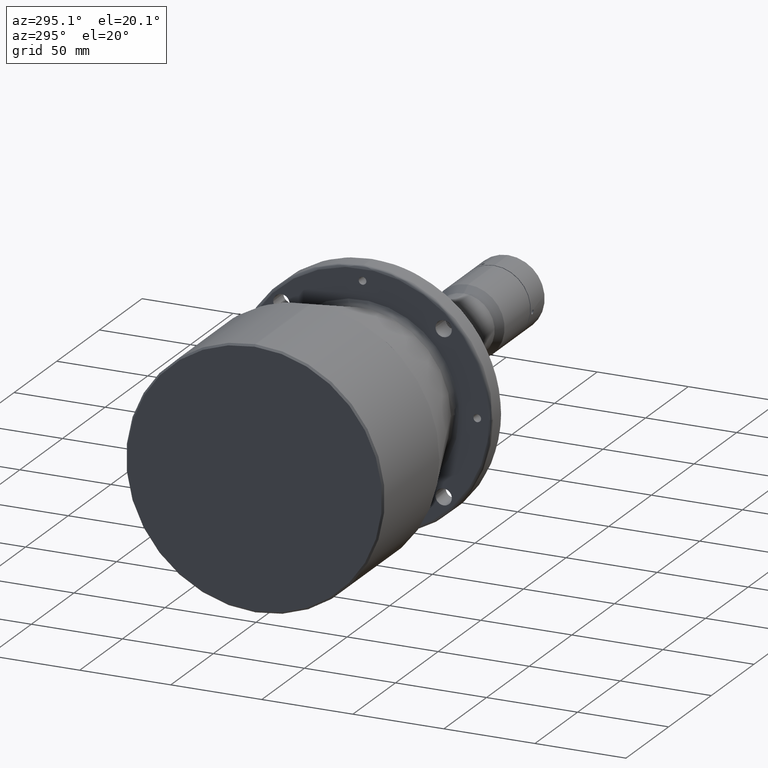
[diagram: clean part render]
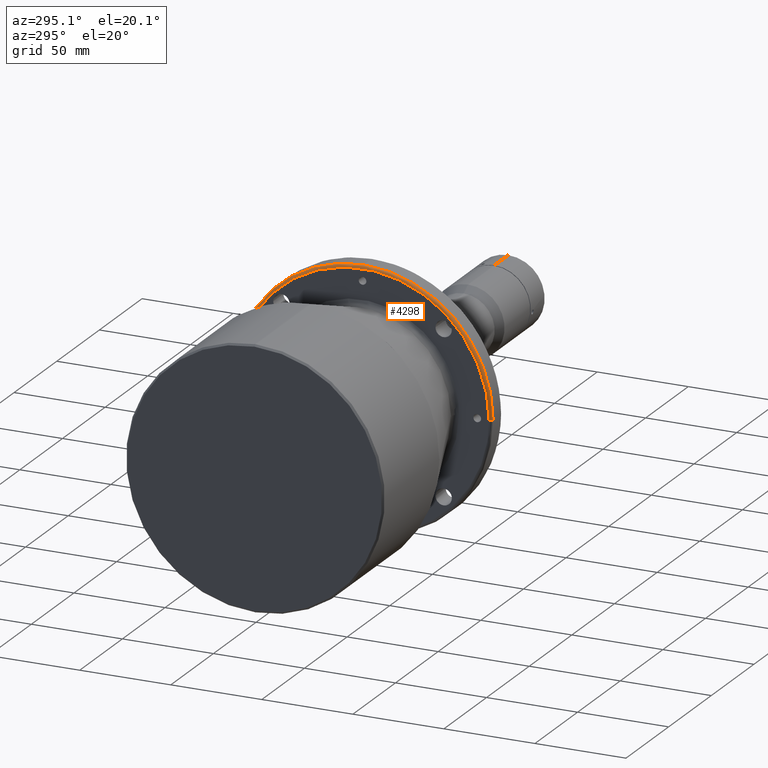
[diagram: same view with one face highlighted and labeled with its STEP entity id]
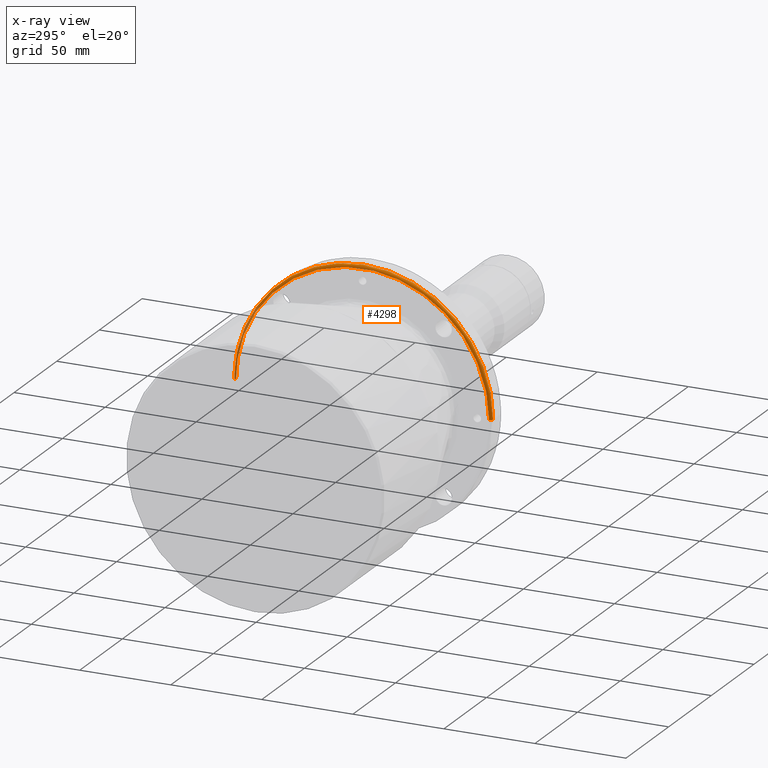
[diagram: x-ray of the same camera — body ghosted, the highlighted face saturated]
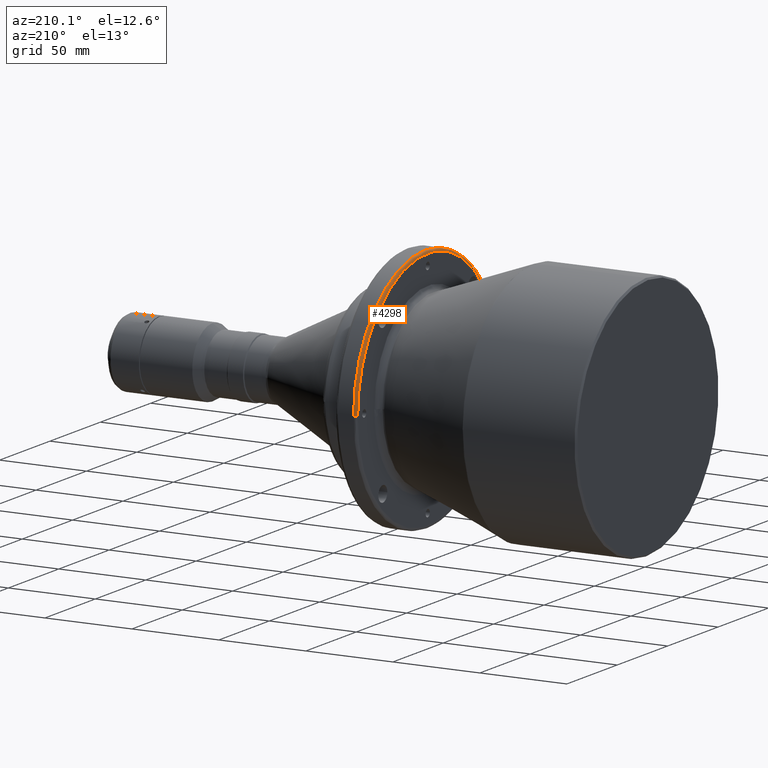
[diagram: same view with one face highlighted and labeled with its STEP entity id]
A machine part, auxiliary view. The second image highlights one B-rep face of the part: STEP entity #4298.
The next image is the same camera in x-ray: the body ghosted, the highlighted face saturated — about 11% of this face is hidden behind the body in this view.
A second angle (auxiliary view) of the same face is appended — the face is thin or edge-on in the first view.
In plain terms, the highlighted face is a freeform B-spline surface patch.
Its self-contained STEP definition (entity closure, byte-faithful):
#7 = CARTESIAN_POINT ( 'NONE',  ( -25.15000000000001300, 16.93357724021069500, 67.40557788604992600 ) ) ;
#20 = CARTESIAN_POINT ( 'NONE',  ( -24.52867965661536700, 70.99999999954467000, 0.0000000000000000000 ) ) ;
#22 = CARTESIAN_POINT ( 'NONE',  ( -25.14999999999999900, 64.56943411866772900, 25.71285148641904400 ) ) ;
#34 = CARTESIAN_POINT ( 'NONE',  ( -25.15000000000000900, 69.50000000069108800, 3.089059547309451800 ) ) ;
#48 = CARTESIAN_POINT ( 'NONE',  ( -25.15000000000000600, 66.70326019980041100, 19.51732346156605400 ) ) ;
#61 = CARTESIAN_POINT ( 'NONE',  ( -25.14999999999999900, 66.60193024557297300, 19.86095965016119200 ) ) ;
#77 = CARTESIAN_POINT ( 'NONE',  ( -25.15000000000000200, 68.43843914036533200, 12.15256604439828400 ) ) ;
#140 = CARTESIAN_POINT ( 'NONE',  ( -25.14999999999999900, -67.14607759262814600, 17.94462166437045900 ) ) ;
#149 = CARTESIAN_POINT ( 'NONE',  ( -25.24483063400000300, -70.37008064799999800, 0.0000000000000000000 ) ) ;
#157 = CARTESIAN_POINT ( 'NONE',  ( -25.15000000000000200, -62.85584053337474600, 29.65646428674047600 ) ) ;
#173 = CARTESIAN_POINT ( 'NONE',  ( -25.15000000000000200, -68.10320550342322600, 13.86444423086701100 ) ) ;
#188 = CARTESIAN_POINT ( 'NONE',  ( -25.15000000000000600, -66.82930120893652800, 19.08183642711247800 ) ) ;
#199 = CARTESIAN_POINT ( 'NONE',  ( -25.15000000000000600, -64.91261266039570900, 24.83150326318654400 ) ) ;
#209 = ORIENTED_EDGE ( 'NONE', *, *, #1931, .F. ) ;
#215 = CARTESIAN_POINT ( 'NONE',  ( -25.14999999999999900, 14.66338187723548900, 67.94223714341832500 ) ) ;
#227 = CARTESIAN_POINT ( 'NONE',  ( -25.15000000000000600, -25.49934572463178400, 64.65323566186219800 ) ) ;
#237 = CARTESIAN_POINT ( 'NONE',  ( -25.15000000003668700, -69.49999998662582400, 0.0000000000000000000 ) ) ;
#243 = CARTESIAN_POINT ( 'NONE',  ( -25.14999999999999900, -19.49606512383960300, 66.71609871024914200 ) ) ;
#259 = CARTESIAN_POINT ( 'NONE',  ( -25.15000000000000200, -32.74401390421467500, 61.30319222040626700 ) ) ;
#275 = CARTESIAN_POINT ( 'NONE',  ( -25.15000000000000200, 7.935071492417510100, 69.04577024414700800 ) ) ;
#288 = CARTESIAN_POINT ( 'NONE',  ( -25.15000000000000900, 32.62958265003229700, 61.36417633138341200 ) ) ;
#307 = CARTESIAN_POINT ( 'NONE',  ( -25.15000000000001300, 59.35795304109333900, 36.15085882399316100 ) ) ;
#316 = ORIENTED_EDGE ( 'NONE', *, *, #2283, .T. ) ;
#317 = EDGE_CURVE ( 'NONE', #1898, #4238, #394, .T. ) ;
#323 = CARTESIAN_POINT ( 'NONE',  ( -25.15000000000000600, 39.43483360961482000, 57.22888769233370000 ) ) ;
#337 = CARTESIAN_POINT ( 'NONE',  ( -25.15000000000000200, 50.98983104269081000, 47.22593120249592900 ) ) ;
#353 = CARTESIAN_POINT ( 'NONE',  ( -25.14999999999999900, 50.67197046114332400, 47.56725663739805300 ) ) ;
#369 = CARTESIAN_POINT ( 'NONE',  ( -25.15000000003668700, 69.49999998662582400, 0.0000000000000000000 ) ) ;
#394 = CIRCLE ( 'NONE', #2090, 71.00000000006113500 ) ;
#397 = CARTESIAN_POINT ( 'NONE',  ( -25.15000000000000600, 62.44254365335036300, 30.51523889023990300 ) ) ;
#412 = CARTESIAN_POINT ( 'NONE',  ( -25.15000000000000600, 67.86335111324619600, 14.99680590185954700 ) ) ;
#484 = CARTESIAN_POINT ( 'NONE',  ( -23.65000000069091300, 71.00000000004585800, -3.187673809220023100E-009 ) ) ;
#488 = CARTESIAN_POINT ( 'NONE',  ( -25.15000000000000200, -51.09300098923260000, 47.11429259081953100 ) ) ;
#504 = CARTESIAN_POINT ( 'NONE',  ( -25.14999999999999900, -62.66498641259350700, 30.05623799162883000 ) ) ;
#517 = CARTESIAN_POINT ( 'NONE',  ( -25.15000000000000200, -66.93674787702161700, 18.70321884678164900 ) ) ;
#531 = CARTESIAN_POINT ( 'NONE',  ( -25.15000000000000600, -62.52729301971967900, 30.34120197159999700 ) ) ;
#545 = CARTESIAN_POINT ( 'NONE',  ( -25.14999999999999900, -51.74311134290822900, 46.40103364986101300 ) ) ;
#559 = CARTESIAN_POINT ( 'NONE',  ( -25.15000000000000600, 3.615260546824086200, 69.43241122376839800 ) ) ;
#571 = CARTESIAN_POINT ( 'NONE',  ( -25.14999999999999900, -25.25976417168491400, 64.74721643963491100 ) ) ;
#583 = CARTESIAN_POINT ( 'NONE',  ( -25.15000000000000200, -18.30477206412453800, 67.04779601054401900 ) ) ;
#597 = CARTESIAN_POINT ( 'NONE',  ( -25.15000000000000600, -32.96485417348282000, 61.18480755394263300 ) ) ;
#613 = CARTESIAN_POINT ( 'NONE',  ( -25.15000000000000200, -25.33845331186490300, 64.71645972324434100 ) ) ;
#626 = CARTESIAN_POINT ( 'NONE',  ( -25.15000000000000200, 32.66885577072833500, 61.34327656883753800 ) ) ;
#642 = CARTESIAN_POINT ( 'NONE',  ( -25.15000000000001300, 26.46633858475883700, 64.27827650886369800 ) ) ;
#658 = CARTESIAN_POINT ( 'NONE',  ( -25.14999999999998800, 39.08877496991725300, 57.46622808633605900 ) ) ;
#674 = CARTESIAN_POINT ( 'NONE',  ( -25.15000000000000900, 55.51076990308021000, 41.81872439423718600 ) ) ;
#690 = CARTESIAN_POINT ( 'NONE',  ( -25.15000000000000200, 48.00641872720680000, 50.28267640048829200 ) ) ;
#733 = CARTESIAN_POINT ( 'NONE',  ( -25.14999999999999900, 68.01670562237657700, 14.28210398955498500 ) ) ;
#752 = CARTESIAN_POINT ( 'NONE',  ( -25.14999999999999100, 68.78330853501961400, 9.959155895381366400 ) ) ;
#770 = CARTESIAN_POINT ( 'NONE',  ( -25.14999999999999500, 67.69106689393268500, 15.76466445911137400 ) ) ;
#813 = CARTESIAN_POINT ( 'NONE',  ( -25.15000000003668700, -69.49999998662582400, 0.0000000000000000000 ) ) ;
#820 = CARTESIAN_POINT ( 'NONE',  ( -24.52008064800000400, -71.09483063400000400, 0.0000000000000000000 ) ) ;
#827 = CARTESIAN_POINT ( 'NONE',  ( -25.14999999999999500, -67.84410767111322100, 15.10751753327878300 ) ) ;
#843 = CARTESIAN_POINT ( 'NONE',  ( -25.15000000000000200, -68.58132653187320200, 11.31841233753285200 ) ) ;
#859 = CARTESIAN_POINT ( 'NONE',  ( -25.15000000000000600, -62.56872603514107600, 30.25576652540834000 ) ) ;
#872 = CARTESIAN_POINT ( 'NONE',  ( -25.14999999999999900, -62.00255059036769700, 31.41786264812665400 ) ) ;
#883 = CARTESIAN_POINT ( 'NONE',  ( -25.15000000000000200, -59.46410138107357600, 35.97598738330842800 ) ) ;
#888 =( BOUNDED_CURVE ( )  B_SPLINE_CURVE ( 3, ( #369, #2010, #20, #4003 ),
 .UNSPECIFIED., .F., .F. ) 
 B_SPLINE_CURVE_WITH_KNOTS ( ( 4, 4 ),
 ( 0.06314145699999938700, 0.9368585429999977100 ),
 .UNSPECIFIED. ) 
 CURVE ( )  GEOMETRIC_REPRESENTATION_ITEM ( )  RATIONAL_B_SPLINE_CURVE ( ( 0.9565783021659932700, 0.7697947703959748800, 0.7697947703959744400, 0.9565783021659917100 ) ) 
 REPRESENTATION_ITEM ( '' )  );
#897 = CARTESIAN_POINT ( 'NONE',  ( -25.15000000000000900, -33.22327051997781000, 61.04517979989158500 ) ) ;
#909 = CARTESIAN_POINT ( 'NONE',  ( -25.14999999999999500, -39.70603994982050000, 57.04105497921728600 ) ) ;
#924 = CARTESIAN_POINT ( 'NONE',  ( -25.15000000000000900, -9.899350284176316400, 68.79303408071703500 ) ) ;
#935 = CARTESIAN_POINT ( 'NONE',  ( -25.15000000000000900, -5.780748179701006100, 69.31969382113146600 ) ) ;
#950 = CARTESIAN_POINT ( 'NONE',  ( -25.14999999999999900, -47.31846151708131700, 50.91065762068905800 ) ) ;
#963 = CARTESIAN_POINT ( 'NONE',  ( -25.14999999999999500, 45.27015428242212600, 52.73432771553675700 ) ) ;
#981 = CARTESIAN_POINT ( 'NONE',  ( -25.15000000000000200, 24.59965545191163000, 65.00124770496671500 ) ) ;
#997 = CARTESIAN_POINT ( 'NONE',  ( -25.15000000000001600, 39.50392321831004200, 57.18121848518328700 ) ) ;
#1012 = CARTESIAN_POINT ( 'NONE',  ( -25.15000000000000600, 55.55541910674316600, 41.75939082263023000 ) ) ;
#1025 = CARTESIAN_POINT ( 'NONE',  ( -25.15000000000000600, 53.02313755981960200, 44.95855932869464100 ) ) ;
#1043 = CARTESIAN_POINT ( 'NONE',  ( -25.15000000000000200, 64.73144780720386400, 25.30054592623711700 ) ) ;
#1057 = CARTESIAN_POINT ( 'NONE',  ( -25.14999999999999900, 63.55084096181419500, 28.16626316024374100 ) ) ;
#1071 = CARTESIAN_POINT ( 'NONE',  ( -25.15000000000000200, 65.23328529718742200, 23.99545343977288800 ) ) ;
#1086 = CARTESIAN_POINT ( 'NONE',  ( -25.15000000000000600, 62.26530769982684200, 30.87576407974521300 ) ) ;
#1090 = CARTESIAN_POINT ( 'NONE',  ( -25.15000000000000200, -68.89134682242782000, 9.177823245543226700 ) ) ;
#1099 = CARTESIAN_POINT ( 'NONE',  ( -25.15000000000000900, 68.87791433487193200, 9.278094791112312800 ) ) ;
#1142 = CARTESIAN_POINT ( 'NONE',  ( -24.52008064800000400, 71.09483063400000400, 0.0000000000000000000 ) ) ;
#1161 = CARTESIAN_POINT ( 'NONE',  ( -25.15000000000000600, -61.26587452857276600, 32.84439853307799200 ) ) ;
#1177 = CARTESIAN_POINT ( 'NONE',  ( -25.14999999999999900, -66.02339109590438700, 21.74307443325844600 ) ) ;
#1184 = CARTESIAN_POINT ( 'NONE',  ( -25.24483063400000300, 70.37008064799999800, 0.0000000000000000000 ) ) ;
#1189 = CARTESIAN_POINT ( 'NONE',  ( -25.15000000000000200, -59.42941193954009500, 36.03326317693997500 ) ) ;
#1202 = CARTESIAN_POINT ( 'NONE',  ( -25.14999999999999900, -55.74803226872569400, 41.50199408482453800 ) ) ;
#1217 = CARTESIAN_POINT ( 'NONE',  ( -25.14999999999999900, -51.39414825087613500, 46.78600456088713600 ) ) ;
#1229 = CARTESIAN_POINT ( 'NONE',  ( -25.14999999999999500, -43.22434126017021300, 54.45046503941485100 ) ) ;
#1240 = CARTESIAN_POINT ( 'NONE',  ( -25.15000000000000600, -23.85886759692006400, 65.29170678811254900 ) ) ;
#1247 = VERTEX_POINT ( 'NONE', #4216 ) ;
#1256 = CARTESIAN_POINT ( 'NONE',  ( -25.15000000000000200, -17.45028343163392700, 67.27366118436611900 ) ) ;
#1269 = CARTESIAN_POINT ( 'NONE',  ( -25.15000000000000200, 1.447741991175169700, 69.50001041610192900 ) ) ;
#1272 = B_SPLINE_CURVE_WITH_KNOTS ( 'NONE', 3,
 ( #813, #3805, #2453, #3099, #2483, #3156, #2774, #1460, #3791, #1090, #3440, #3186, #2219, #843, #4187, #2192, #173, #1833, #3173, #2870, #1560, #827, #2542, #140, #517, #188, #4176, #3558, #2513, #2885, #2844, #1177, #3838, #2526, #2858, #3852, #3533, #199, #2175, #1532, #3882, #4217, #157, #504, #859, #531, #4206, #3521, #872, #1161, #3200, #1519, #1847, #3508, #883, #1189, #3869, #2158, #1858, #2205, #1550, #3214, #1202, #1503, #3226, #3542, #1870, #4161, #2555, #545, #1217, #3897, #2497, #488, #2829, #1917, #1895, #950, #1593, #3293, #1284, #2910, #3627, #4274, #2940, #1229, #4246, #3571, #1570, #3236, #909, #4292, #3251, #1904, #4261, #2255, #3907, #897, #597, #1623, #3918, #259, #2231, #2592, #2273, #2245, #1883, #227, #613, #571, #1240, #2581, #243, #583, #1582, #1256, #2287, #3586, #3599, #1608, #2924, #924, #3265, #3929, #2604, #935, #3279, #1269, #559, #3615, #3943, #275, #1929, #2617, #2955, #4232, #215, #2565, #2898, #3990, #7, #1687, #4019, #3356, #1979, #2636, #981, #2972, #1995, #2988, #642, #2300, #2333, #3704, #4338, #3020, #3674, #288, #626, #1672, #2651, #1298, #2363, #658, #1349, #323, #997, #2666, #4005, #4309, #3324, #4354, #963, #3309, #1655, #2012, #3007, #3342, #690, #1315, #3687, #353, #2346, #1330, #337, #2696, #3037, #1025, #2679, #3643, #3657, #1637, #674, #1012, #3373, #3974, #1363, #3957, #1947, #1964, #4322, #2316, #307, #2057, #1394, #3388, #2088, #2738, #1086, #1731, #3079, #397, #3747, #2026, #1057, #1743, #22, #1043, #3049, #4066, #4050, #3404, #1071, #4078, #3419, #2075, #61, #3733, #2378, #48, #1411, #2408, #1380, #770, #412, #2042, #1701, #2419, #733, #4095, #3718, #77, #2753, #752, #1716, #3112, #3093, #1099, #3451, #3435, #4037, #34, #1424 ),
 .UNSPECIFIED., .F., .F.,
 ( 4, 1, 1, 1, 1, 1, 1, 1, 2, 2, 1, 1, 1, 1, 1, 2, 2, 1, 1, 1, 1, 1, 2, 2, 1, 1, 1, 1, 1, 2, 2, 1, 1, 1, 1, 1, 2, 2, 1, 1, 1, 1, 1, 2, 2, 1, 1, 1, 1, 1, 2, 2, 1, 1, 1, 1, 1, 2, 2, 1, 1, 1, 1, 1, 2, 2, 1, 1, 1, 1, 1, 2, 2, 1, 1, 1, 1, 1, 2, 2, 1, 1, 1, 1, 2, 2, 1, 1, 1, 1, 2, 2, 1, 1, 1, 2, 2, 2, 1, 1, 1, 2, 2, 1, 1, 1, 1, 2, 2, 1, 1, 1, 1, 2, 2, 1, 1, 1, 1, 1, 2, 2, 1, 1, 1, 1, 1, 2, 2, 1, 1, 1, 1, 1, 2, 2, 1, 1, 1, 1, 1, 2, 2, 1, 1, 1, 1, 1, 2, 2, 1, 1, 1, 1, 1, 2, 2, 1, 1, 1, 1, 1, 2, 2, 1, 1, 1, 1, 1, 2, 2, 1, 1, 1, 1, 1, 2, 2, 1, 1, 1, 1, 1, 2, 2, 1, 1, 1, 1, 1, 1, 2, 2, 4 ),
 ( 0.0000000000000000000, 0.03125000000000577300, 0.04687500000000865300, 0.05468750000001008200, 0.05859375000001076200, 0.06054687500001110200, 0.06152343750001125500, 0.06201171875001136600, 0.06225585937501140100, 0.06250000000001143500, 0.07812500000001425200, 0.08593750000001568200, 0.08984375000001637600, 0.09179687500001672300, 0.09277343750001691700, 0.09326171875001701400, 0.09375000000001712500, 0.1093750000000205100, 0.1171875000000221800, 0.1210937500000230400, 0.1230468750000234400, 0.1240234375000236100, 0.1245117187500236600, 0.1250000000000237000, 0.1406250000000246500, 0.1484375000000251500, 0.1523437500000254500, 0.1542968750000255600, 0.1552734375000256500, 0.1557617187500256700, 0.1562500000000256700, 0.1718750000000256500, 0.1796875000000256500, 0.1835937500000256200, 0.1855468750000256200, 0.1865234375000256500, 0.1870117187500257300, 0.1875000000000258100, 0.2031250000000287300, 0.2109375000000302000, 0.2148437500000309800, 0.2167968750000313100, 0.2177734375000314700, 0.2182617187500315600, 0.2187500000000316100, 0.2343750000000324700, 0.2421875000000328300, 0.2460937500000330000, 0.2480468750000330600, 0.2490234375000330600, 0.2495117187500330600, 0.2500000000000330300, 0.2656250000000310300, 0.2734375000000300300, 0.2773437500000294800, 0.2792968750000291400, 0.2802734375000289800, 0.2807617187500288700, 0.2812500000000288100, 0.2968750000000268100, 0.3046875000000258100, 0.3085937500000252600, 0.3105468750000249200, 0.3115234375000248100, 0.3120117187500247000, 0.3125000000000246500, 0.3281250000000244800, 0.3359375000000243700, 0.3398437500000243100, 0.3417968750000242600, 0.3427734375000242600, 0.3432617187500242000, 0.3437500000000242000, 0.3593750000000236500, 0.3671875000000233700, 0.3710937500000232000, 0.3730468750000231500, 0.3740234375000231500, 0.3745117187500230900, 0.3750000000000230900, 0.3906250000000240900, 0.3984375000000246500, 0.4023437500000249200, 0.4042968750000250400, 0.4052734375000250900, 0.4062500000000250900, 0.4218750000000253100, 0.4296875000000254200, 0.4335937500000254200, 0.4355468750000254200, 0.4365234375000254800, 0.4375000000000254800, 0.4531250000000257000, 0.4609375000000258100, 0.4648437500000258700, 0.4667968750000258700, 0.4687500000000259200, 0.5000000000000263100, 0.5156250000000265300, 0.5234375000000266500, 0.5273437500000266500, 0.5292968750000267600, 0.5312500000000267600, 0.5468750000000269800, 0.5546875000000270900, 0.5585937500000270900, 0.5605468750000272000, 0.5615234375000272000, 0.5625000000000273100, 0.5781250000000274200, 0.5859375000000275300, 0.5898437500000275300, 0.5917968750000276400, 0.5927734375000275300, 0.5937500000000275300, 0.6093750000000278700, 0.6171875000000280900, 0.6210937500000280900, 0.6230468750000282000, 0.6240234375000280900, 0.6245117187500280900, 0.6250000000000280900, 0.6406250000000256500, 0.6484375000000244200, 0.6523437500000237600, 0.6542968750000235400, 0.6552734375000233100, 0.6557617187500232000, 0.6562500000000230900, 0.6718750000000208700, 0.6796875000000198700, 0.6835937500000193200, 0.6855468750000191000, 0.6865234375000188700, 0.6870117187500188700, 0.6875000000000188700, 0.7031250000000186500, 0.7109375000000185400, 0.7148437500000184300, 0.7167968750000185400, 0.7177734375000184300, 0.7182617187500184300, 0.7187500000000184300, 0.7343750000000159900, 0.7421875000000147700, 0.7460937500000141000, 0.7480468750000138800, 0.7490234375000135400, 0.7495117187500134300, 0.7500000000000133200, 0.7656250000000083300, 0.7734375000000057700, 0.7773437500000044400, 0.7792968750000038900, 0.7802734375000034400, 0.7807617187500033300, 0.7812500000000032200, 0.7968749999999985600, 0.8046874999999962300, 0.8085937499999950000, 0.8105468749999944500, 0.8115234374999940000, 0.8120117187499938900, 0.8124999999999937800, 0.8281249999999887900, 0.8359374999999863400, 0.8398437499999850100, 0.8417968749999844600, 0.8427734374999840100, 0.8432617187499839000, 0.8437499999999837900, 0.8593749999999812400, 0.8671874999999800200, 0.8710937499999792400, 0.8730468749999790200, 0.8740234374999787900, 0.8745117187499787900, 0.8749999999999787900, 0.8906249999999791300, 0.8984374999999792400, 0.9023437499999792400, 0.9042968749999793500, 0.9052734374999793500, 0.9057617187499794600, 0.9062499999999795700, 0.9218749999999821300, 0.9296874999999833500, 0.9335937499999839000, 0.9355468749999843500, 0.9365234374999844600, 0.9370117187499845700, 0.9372558593749846800, 0.9374999999999846800, 1.000000000000000000 ),
 .UNSPECIFIED. ) ;
#1284 = CARTESIAN_POINT ( 'NONE',  ( -25.14999999999999900, -45.90333909980447700, 52.18375175869247300 ) ) ;
#1286 = ORIENTED_EDGE ( 'NONE', *, *, #2514, .F. ) ;
#1298 = CARTESIAN_POINT ( 'NONE',  ( -25.15000000000000900, 37.62300251817506300, 58.44275675382230900 ) ) ;
#1315 = CARTESIAN_POINT ( 'NONE',  ( -25.15000000000000200, 49.54480206859538800, 48.74673856778634500 ) ) ;
#1330 = CARTESIAN_POINT ( 'NONE',  ( -25.15000000000000900, 50.93697122815261500, 47.28293971959861600 ) ) ;
#1349 = CARTESIAN_POINT ( 'NONE',  ( -25.14999999999999500, 39.33114010661507400, 57.30029418289002800 ) ) ;
#1363 = CARTESIAN_POINT ( 'NONE',  ( -25.14999999999999900, 57.26074548396676500, 39.41695352863699500 ) ) ;
#1380 = CARTESIAN_POINT ( 'NONE',  ( -25.15000000000000600, 67.32429834200908700, 17.29471601080429000 ) ) ;
#1394 = CARTESIAN_POINT ( 'NONE',  ( -25.14999999999999900, 59.95088452926697900, 35.17513152919492800 ) ) ;
#1411 = CARTESIAN_POINT ( 'NONE',  ( -25.15000000000000200, 66.71212912692097100, 19.48698511344927200 ) ) ;
#1415 = ORIENTED_EDGE ( 'NONE', *, *, #317, .T. ) ;
#1424 = CARTESIAN_POINT ( 'NONE',  ( -25.15000000003668700, 69.49999998662582400, 0.0000000000000000000 ) ) ;
#1432 = FACE_OUTER_BOUND ( 'NONE', #3329, .T. ) ;
#1460 = CARTESIAN_POINT ( 'NONE',  ( -25.14999999999999900, -68.90720405759661600, 9.058214138158046300 ) ) ;
#1466 = CARTESIAN_POINT ( 'NONE',  ( -23.50024987499999100, 70.99250624800002600, 141.9850124960000000 ) ) ;
#1496 = CARTESIAN_POINT ( 'NONE',  ( -25.24483063400000700, -70.37008064800001300, 140.7401612959999700 ) ) ;
#1503 = CARTESIAN_POINT ( 'NONE',  ( -25.15000000000000200, -55.68465681739665000, 41.58689874180299700 ) ) ;
#1519 = CARTESIAN_POINT ( 'NONE',  ( -25.15000000000000200, -59.87674128818848400, 35.28671026680825700 ) ) ;
#1532 = CARTESIAN_POINT ( 'NONE',  ( -25.15000000000000600, -64.52865805019861500, 25.83270491791014200 ) ) ;
#1550 = CARTESIAN_POINT ( 'NONE',  ( -25.15000000000000200, -56.18837991152453500, 40.90545752142153900 ) ) ;
#1560 = CARTESIAN_POINT ( 'NONE',  ( -25.14999999999999900, -68.03398928303414600, 14.19954448899562200 ) ) ;
#1570 = CARTESIAN_POINT ( 'NONE',  ( -25.15000000000000200, -40.03791677160916900, 56.80899079817098100 ) ) ;
#1582 = CARTESIAN_POINT ( 'NONE',  ( -25.15000000000000600, -17.70695552306185800, 67.20691159245501500 ) ) ;
#1593 = CARTESIAN_POINT ( 'NONE',  ( -25.15000000000000600, -46.51364306133798700, 51.64205296129001300 ) ) ;
#1608 = CARTESIAN_POINT ( 'NONE',  ( -25.15000000000000600, -13.61440410436711100, 68.18006284679948700 ) ) ;
#1609 =( BOUNDED_CURVE ( )  B_SPLINE_CURVE ( 3, ( #3637, #4255, #1958, #237 ),
 .UNSPECIFIED., .F., .F. ) 
 B_SPLINE_CURVE_WITH_KNOTS ( ( 4, 4 ),
 ( 0.06314145700000042800, 0.9368585430000006000 ),
 .UNSPECIFIED. ) 
 CURVE ( )  GEOMETRIC_REPRESENTATION_ITEM ( )  RATIONAL_B_SPLINE_CURVE ( ( 0.9565783021659929300, 0.7697947703959743300, 0.7697947703959745500, 0.9565783021659934900 ) ) 
 REPRESENTATION_ITEM ( '' )  );
#1616 = DIRECTION ( 'NONE',  ( 0.0000000000000000000, 0.0000000000000000000, 1.000000000000000000 ) ) ;
#1623 = CARTESIAN_POINT ( 'NONE',  ( -25.15000000000000200, -32.85392576557453000, 61.24435683922977300 ) ) ;
#1637 = CARTESIAN_POINT ( 'NONE',  ( -25.15000000000000900, 55.44372778773255600, 41.90766750103888700 ) ) ;
#1655 = CARTESIAN_POINT ( 'NONE',  ( -25.15000000000000600, 45.57644664141275800, 52.46941075759471600 ) ) ;
#1672 = CARTESIAN_POINT ( 'NONE',  ( -25.15000000000000900, 33.89073299448450200, 60.69162040555708900 ) ) ;
#1687 = CARTESIAN_POINT ( 'NONE',  ( -25.15000000000000600, 17.02200126679663200, 67.38330055552394500 ) ) ;
#1701 = CARTESIAN_POINT ( 'NONE',  ( -25.14999999999999900, 67.98770800294765600, 14.41967264205587700 ) ) ;
#1716 = CARTESIAN_POINT ( 'NONE',  ( -25.15000000000000200, 68.83496397189644300, 9.592557022527177700 ) ) ;
#1731 = CARTESIAN_POINT ( 'NONE',  ( -25.15000000000000600, 62.36890524804408600, 30.66557329318748900 ) ) ;
#1743 = CARTESIAN_POINT ( 'NONE',  ( -25.14999999999998400, 64.23876230936159000, 26.53454522288765100 ) ) ;
#1833 = CARTESIAN_POINT ( 'NONE',  ( -25.15000000000000200, -68.06592874925139800, 14.04578603505335400 ) ) ;
#1843 = AXIS2_PLACEMENT_3D ( 'NONE', #3245, #2186, #2522 ) ;
#1847 = CARTESIAN_POINT ( 'NONE',  ( -25.14999999999999900, -59.63688990377083600, 35.68925171701872000 ) ) ;
#1858 = CARTESIAN_POINT ( 'NONE',  ( -25.14999999999999900, -57.89353305692470300, 38.48152901831900900 ) ) ;
#1870 = CARTESIAN_POINT ( 'NONE',  ( -25.15000000000000600, -54.88728895360868200, 42.65029620894068800 ) ) ;
#1883 = CARTESIAN_POINT ( 'NONE',  ( -25.14999999999999900, -25.74048193550043700, 64.55796106882550600 ) ) ;
#1895 = CARTESIAN_POINT ( 'NONE',  ( -25.15000000000000600, -48.89751502410609200, 49.41656313126689800 ) ) ;
#1898 = VERTEX_POINT ( 'NONE', #4114 ) ;
#1899 = CARTESIAN_POINT ( 'NONE',  ( -23.65000000069090900, 0.0000000000000000000, 0.0000000000000000000 ) ) ;
#1904 = CARTESIAN_POINT ( 'NONE',  ( -25.15000000000000900, -38.46907077480706500, 57.89805799414154600 ) ) ;
#1917 = CARTESIAN_POINT ( 'NONE',  ( -25.15000000000000900, -50.19856076533563500, 48.08224704052730700 ) ) ;
#1929 = CARTESIAN_POINT ( 'NONE',  ( -25.15000000000000900, 8.294447970765176600, 69.00351358834356600 ) ) ;
#1931 = EDGE_CURVE ( 'NONE', #1247, #2421, #1272, .T. ) ;
#1942 = CARTESIAN_POINT ( 'NONE',  ( -25.15000000003668700, 69.49999998662582400, 0.0000000000000000000 ) ) ;
#1947 = CARTESIAN_POINT ( 'NONE',  ( -25.14999999999999500, 58.87611249972016500, 36.93228734701598600 ) ) ;
#1958 = CARTESIAN_POINT ( 'NONE',  ( -25.14999999954466500, -70.37867965661534700, 0.0000000000000000000 ) ) ;
#1964 = CARTESIAN_POINT ( 'NONE',  ( -25.15000000000000600, 59.13662996559362700, 36.51224345139912900 ) ) ;
#1965 = VERTEX_POINT ( 'NONE', #484 ) ;
#1979 = CARTESIAN_POINT ( 'NONE',  ( -25.14999999999999900, 22.85797823898214200, 65.64028680058345300 ) ) ;
#1995 = CARTESIAN_POINT ( 'NONE',  ( -25.15000000000000200, 25.01245348141887700, 64.84315612132644400 ) ) ;
#2010 = CARTESIAN_POINT ( 'NONE',  ( -25.14999999954467600, 70.37867965661536100, 0.0000000000000000000 ) ) ;
#2012 = CARTESIAN_POINT ( 'NONE',  ( -25.15000000000000200, 45.63757086808597300, 52.41625413830136200 ) ) ;
#2026 = CARTESIAN_POINT ( 'NONE',  ( -25.15000000000000600, 62.91563227145595500, 29.54487361698147300 ) ) ;
#2042 = CARTESIAN_POINT ( 'NONE',  ( -25.15000000000000200, 67.94671820874084700, 14.61216842788233600 ) ) ;
#2057 = CARTESIAN_POINT ( 'NONE',  ( -25.15000000000000200, 59.37727669883209100, 36.11910985521627300 ) ) ;
#2075 = CARTESIAN_POINT ( 'NONE',  ( -25.15000000000000600, 66.48182357837001200, 20.26122311809418600 ) ) ;
#2088 = CARTESIAN_POINT ( 'NONE',  ( -25.14999999999999900, 61.63127606163180200, 32.13005594150651200 ) ) ;
#2090 = AXIS2_PLACEMENT_3D ( 'NONE', #1899, #3605, #1616 ) ;
#2151 = CARTESIAN_POINT ( 'NONE',  ( -24.52008064800000000, 71.09483063399999000, 142.1896612679999200 ) ) ;
#2158 = CARTESIAN_POINT ( 'NONE',  ( -25.15000000000000600, -58.80791969535311400, 37.05612595042281000 ) ) ;
#2167 = CARTESIAN_POINT ( 'NONE',  ( -25.14250624799999700, -69.35024987500000300, 0.0000000000000000000 ) ) ;
#2175 = CARTESIAN_POINT ( 'NONE',  ( -25.14999999999999900, -64.90257757983279400, 24.85772299809568900 ) ) ;
#2186 = DIRECTION ( 'NONE',  ( -1.000000000000000000, 0.0000000000000000000, 0.0000000000000000000 ) ) ;
#2192 = CARTESIAN_POINT ( 'NONE',  ( -25.15000000000000200, -68.17650891091115300, 13.50155357578788100 ) ) ;
#2199 = CARTESIAN_POINT ( 'NONE',  ( -23.50024987499999400, -70.99250624800002600, 0.0000000000000000000 ) ) ;
#2205 = CARTESIAN_POINT ( 'NONE',  ( -25.15000000000000200, -56.76676205791032700, 40.10419819807457700 ) ) ;
#2219 = CARTESIAN_POINT ( 'NONE',  ( -25.15000000000000600, -68.77264765931951700, 10.06427756392380200 ) ) ;
#2231 = CARTESIAN_POINT ( 'NONE',  ( -25.15000000000000900, -31.48567272292208200, 61.97431955535744700 ) ) ;
#2245 = CARTESIAN_POINT ( 'NONE',  ( -25.14999999999999900, -26.30171623622269200, 64.33258417832891500 ) ) ;
#2255 = CARTESIAN_POINT ( 'NONE',  ( -25.14999999999999100, -34.76210365079677400, 60.18838946758271600 ) ) ;
#2273 = CARTESIAN_POINT ( 'NONE',  ( -25.14999999999999900, -27.41851740578167800, 63.86955237035800100 ) ) ;
#2283 = EDGE_CURVE ( 'NONE', #4238, #1965, #2845, .T. ) ;
#2287 = CARTESIAN_POINT ( 'NONE',  ( -25.15000000000000600, -17.27906537014837000, 67.31784029000994000 ) ) ;
#2300 = CARTESIAN_POINT ( 'NONE',  ( -25.15000000000000200, 28.37413913802189600, 63.47058544385316000 ) ) ;
#2316 = CARTESIAN_POINT ( 'NONE',  ( -25.15000000000000600, 59.32118066689127300, 36.21116779200714600 ) ) ;
#2333 = CARTESIAN_POINT ( 'NONE',  ( -25.14999999999999100, 30.55498467177362800, 62.42986287142058900 ) ) ;
#2346 = CARTESIAN_POINT ( 'NONE',  ( -25.15000000000000200, 50.85761360044353600, 47.36838226934486300 ) ) ;
#2363 = CARTESIAN_POINT ( 'NONE',  ( -25.15000000000000200, 38.60239017772808300, 57.79537092848678300 ) ) ;
#2378 = CARTESIAN_POINT ( 'NONE',  ( -25.15000000000000600, 66.68646583879153400, 19.57462827520553400 ) ) ;
#2408 = CARTESIAN_POINT ( 'NONE',  ( -25.15000000000000200, 66.97186796042302600, 18.59647637600844700 ) ) ;
#2419 = CARTESIAN_POINT ( 'NONE',  ( -25.15000000000000600, 68.00512639613475600, 14.33713650909356500 ) ) ;
#2421 = VERTEX_POINT ( 'NONE', #1942 ) ;
#2453 = CARTESIAN_POINT ( 'NONE',  ( -25.14999999999999900, -69.42311946971683800, 3.855836401797429600 ) ) ;
#2477 = CARTESIAN_POINT ( 'NONE',  ( -25.14250624799999700, -69.35024987500000300, 138.7004997500000100 ) ) ;
#2483 = CARTESIAN_POINT ( 'NONE',  ( -25.14999999999999500, -69.05313191440343700, 7.885421235582527700 ) ) ;
#2497 = CARTESIAN_POINT ( 'NONE',  ( -25.15000000000001300, -51.14331039657947300, 47.05967585574936900 ) ) ;
#2513 = CARTESIAN_POINT ( 'NONE',  ( -25.14999999999999900, -66.73573036774989500, 19.40600500806361200 ) ) ;
#2514 = EDGE_CURVE ( 'NONE', #1898, #1247, #1609, .T. ) ;
#2522 = DIRECTION ( 'NONE',  ( 0.0000000000000000000, 0.0000000000000000000, 1.000000000000000000 ) ) ;
#2526 = CARTESIAN_POINT ( 'NONE',  ( -25.15000000000000200, -65.18653997086693200, 24.10529068803783700 ) ) ;
#2542 = CARTESIAN_POINT ( 'NONE',  ( -25.15000000000000200, -67.54248254158622400, 16.42197921255005600 ) ) ;
#2555 = CARTESIAN_POINT ( 'NONE',  ( -25.15000000000000900, -52.43335090442189300, 45.62472279052516900 ) ) ;
#2565 = CARTESIAN_POINT ( 'NONE',  ( -25.15000000000000200, 15.88732362148305000, 67.66144867016610900 ) ) ;
#2581 = CARTESIAN_POINT ( 'NONE',  ( -25.15000000000000600, -21.86129115362859200, 65.99883956376790200 ) ) ;
#2592 = CARTESIAN_POINT ( 'NONE',  ( -25.15000000000000900, -29.62945001735759500, 62.89437664650581200 ) ) ;
#2604 = CARTESIAN_POINT ( 'NONE',  ( -25.15000000000000200, -8.833255768042997500, 68.93660960383388700 ) ) ;
#2617 = CARTESIAN_POINT ( 'NONE',  ( -25.15000000000000200, 8.475529838084787200, 68.98150071208098700 ) ) ;
#2636 = CARTESIAN_POINT ( 'NONE',  ( -25.15000000000000600, 24.02052439697100200, 65.21875543155472600 ) ) ;
#2651 = CARTESIAN_POINT ( 'NONE',  ( -25.15000000000000200, 35.63775489837080100, 59.69392896863014600 ) ) ;
#2666 = CARTESIAN_POINT ( 'NONE',  ( -25.15000000000000600, 39.53966341633520900, 57.15650983350694500 ) ) ;
#2679 = CARTESIAN_POINT ( 'NONE',  ( -25.15000000000000200, 54.33197065634834600, 43.34637851301015100 ) ) ;
#2696 = CARTESIAN_POINT ( 'NONE',  ( -25.15000000000000900, 51.01742933566045200, 47.19611471972483200 ) ) ;
#2738 = CARTESIAN_POINT ( 'NONE',  ( -25.14999999999999500, 62.05633455355069100, 31.29516667320564200 ) ) ;
#2753 = CARTESIAN_POINT ( 'NONE',  ( -25.15000000000000200, 68.67500669363838000, 10.69147034278862300 ) ) ;
#2774 = CARTESIAN_POINT ( 'NONE',  ( -25.14999999999999900, -68.92910199529274000, 8.890741493290905200 ) ) ;
#2829 = CARTESIAN_POINT ( 'NONE',  ( -25.14999999999999900, -51.06899989463948900, 47.14030887882783800 ) ) ;
#2844 = CARTESIAN_POINT ( 'NONE',  ( -25.15000000000000200, -66.45256300620602000, 20.37695196876179800 ) ) ;
#2845 = CIRCLE ( 'NONE', #1843, 71.00000000006113500 ) ;
#2852 = CARTESIAN_POINT ( 'NONE',  ( -25.24483063400000700, 70.37008064800001300, 140.7401612959999700 ) ) ;
#2858 = CARTESIAN_POINT ( 'NONE',  ( -25.15000000000000600, -65.03991475985984000, 24.49661855899358200 ) ) ;
#2870 = CARTESIAN_POINT ( 'NONE',  ( -25.14999999999999900, -68.03904949966963000, 14.17527399287681400 ) ) ;
#2885 = CARTESIAN_POINT ( 'NONE',  ( -25.15000000000000600, -66.72835740674028700, 19.43134525117572800 ) ) ;
#2898 = CARTESIAN_POINT ( 'NONE',  ( -25.15000000000000600, 16.49795459690624400, 67.51388378302540600 ) ) ;
#2910 = CARTESIAN_POINT ( 'NONE',  ( -25.15000000000000200, -45.81567495389072100, 52.26064817917513500 ) ) ;
#2924 = CARTESIAN_POINT ( 'NONE',  ( -25.15000000000000200, -11.14135281389265800, 68.60781726397738100 ) ) ;
#2940 = CARTESIAN_POINT ( 'NONE',  ( -25.15000000000000600, -44.72229909331419200, 53.21509744653650400 ) ) ;
#2955 = CARTESIAN_POINT ( 'NONE',  ( -25.15000000000000900, 10.07902977858649200, 68.78029002936729300 ) ) ;
#2972 = CARTESIAN_POINT ( 'NONE',  ( -25.14999999999999500, 24.84739547030322600, 64.90658538455606700 ) ) ;
#2988 = CARTESIAN_POINT ( 'NONE',  ( -25.15000000000000200, 25.09679723494500400, 64.81055583208795700 ) ) ;
#3007 = CARTESIAN_POINT ( 'NONE',  ( -25.15000000000000200, 45.66934818229734800, 52.38856846957409600 ) ) ;
#3020 = CARTESIAN_POINT ( 'NONE',  ( -25.15000000000000600, 32.43865791625024300, 61.46540919011692200 ) ) ;
#3037 = CARTESIAN_POINT ( 'NONE',  ( -25.14999999999999900, 51.84881865266385900, 46.29646013182431800 ) ) ;
#3049 = CARTESIAN_POINT ( 'NONE',  ( -25.15000000000000600, 64.81162409744271700, 25.09402847315924100 ) ) ;
#3079 = CARTESIAN_POINT ( 'NONE',  ( -25.15000000000000600, 62.41311369193987700, 30.57538663684258400 ) ) ;
#3093 = CARTESIAN_POINT ( 'NONE',  ( -25.15000000000000600, 68.87261377538550300, 9.317414646383115300 ) ) ;
#3095 =( BOUNDED_SURFACE ( )  B_SPLINE_SURFACE ( 3, 3, ( 
 ( #2167, #2477, #3514, #3194 ),
 ( #149, #1496, #2852, #1184 ),
 ( #820, #3799, #2151, #1142 ),
 ( #2199, #3474, #1466, #3501 ) ),
 .UNSPECIFIED., .F., .F., .T. ) 
 B_SPLINE_SURFACE_WITH_KNOTS ( ( 4, 4 ),
 ( 4, 4 ),
 ( 0.0000000000000000000, 1.000000000000000000 ),
 ( 0.0000000000000000000, 1.000000000000000000 ),
 .UNSPECIFIED. ) 
 GEOMETRIC_REPRESENTATION_ITEM ( )  RATIONAL_B_SPLINE_SURFACE ( (
 ( 1.000000000000000000, 0.3333333333333330400, 0.3333333333333330400, 1.000000000000000000),
 ( 0.7553208711179710800, 0.2517736237059899900, 0.2517736237059899900, 0.7553208711179710800),
 ( 0.7553208711179710800, 0.2517736237059899900, 0.2517736237059899900, 0.7553208711179710800),
 ( 1.000000000000000000, 0.3333333333333330400, 0.3333333333333330400, 1.000000000000000000) ) ) 
 REPRESENTATION_ITEM ( '' )  SURFACE ( )  );
#3099 = CARTESIAN_POINT ( 'NONE',  ( -25.14999999999999100, -69.19888458770871900, 6.543702522623299900 ) ) ;
#3112 = CARTESIAN_POINT ( 'NONE',  ( -25.15000000000000600, 68.86016781938141700, 9.409147173812421300 ) ) ;
#3156 = CARTESIAN_POINT ( 'NONE',  ( -25.15000000000000600, -68.97184676967555100, 8.555727005198699300 ) ) ;
#3173 = CARTESIAN_POINT ( 'NONE',  ( -25.15000000000000900, -68.04981905808595900, 14.12348176755752500 ) ) ;
#3186 = CARTESIAN_POINT ( 'NONE',  ( -25.15000000000000600, -68.88671056685953400, 9.212560375546234000 ) ) ;
#3194 = CARTESIAN_POINT ( 'NONE',  ( -25.14250624799999700, 69.35024987500000300, 0.0000000000000000000 ) ) ;
#3200 = CARTESIAN_POINT ( 'NONE',  ( -25.14999999999999500, -60.34930476186350000, 34.47776121889189200 ) ) ;
#3214 = CARTESIAN_POINT ( 'NONE',  ( -25.14999999999999500, -55.89543967661187900, 41.30356836646230100 ) ) ;
#3226 = CARTESIAN_POINT ( 'NONE',  ( -25.15000000000000600, -55.64236188363296500, 41.64347186054301600 ) ) ;
#3236 = CARTESIAN_POINT ( 'NONE',  ( -25.14999999999999900, -39.80574023983482600, 56.97161109962844000 ) ) ;
#3245 = CARTESIAN_POINT ( 'NONE',  ( -23.65000000069090900, 0.0000000000000000000, 0.0000000000000000000 ) ) ;
#3251 = CARTESIAN_POINT ( 'NONE',  ( -25.15000000000000900, -39.60745007961837400, 57.10955801922981600 ) ) ;
#3265 = CARTESIAN_POINT ( 'NONE',  ( -25.15000000000000600, -9.365889867623767600, 68.86627120392350300 ) ) ;
#3279 = CARTESIAN_POINT ( 'NONE',  ( -25.15000000000000600, -2.895483982350333600, 69.49997916986933400 ) ) ;
#3293 = CARTESIAN_POINT ( 'NONE',  ( -25.15000000000000600, -46.10741090790860100, 52.00383765556291100 ) ) ;
#3309 = CARTESIAN_POINT ( 'NONE',  ( -25.14999999999999100, 45.48469534408439300, 52.54906186667744800 ) ) ;
#3324 = CARTESIAN_POINT ( 'NONE',  ( -25.14999999999999900, 43.97017627802499400, 53.82949411667738800 ) ) ;
#3329 = EDGE_LOOP ( 'NONE', ( #209, #1286, #1415, #316, #3553 ) ) ;
#3342 = CARTESIAN_POINT ( 'NONE',  ( -25.15000000000000600, 46.63565270202943900, 51.54526104560549300 ) ) ;
#3356 = CARTESIAN_POINT ( 'NONE',  ( -25.15000000000000600, 20.51574973057412500, 66.42941320205184800 ) ) ;
#3373 = CARTESIAN_POINT ( 'NONE',  ( -25.15000000000000900, 55.57881405163868700, 41.72824749198876000 ) ) ;
#3388 = CARTESIAN_POINT ( 'NONE',  ( -25.14999999999999500, 60.75271028032749100, 33.78417080362807900 ) ) ;
#3404 = CARTESIAN_POINT ( 'NONE',  ( -25.15000000000000900, 64.88055797836442200, 24.91513710678749800 ) ) ;
#3419 = CARTESIAN_POINT ( 'NONE',  ( -25.15000000000000200, 66.23549950762655700, 21.05966150785630800 ) ) ;
#3435 = CARTESIAN_POINT ( 'NONE',  ( -25.15000000000000200, 68.88335407516875400, 9.237622243978655900 ) ) ;
#3440 = CARTESIAN_POINT ( 'NONE',  ( -25.14999999999999900, -68.88815598007781200, 9.201743790145794600 ) ) ;
#3450 = CARTESIAN_POINT ( 'NONE',  ( -23.65000000069090900, 8.694992273946208100E-015, 71.00000000000001400 ) ) ;
#3451 = CARTESIAN_POINT ( 'NONE',  ( -25.14999999999999500, 68.88144061416100800, 9.251880239833104400 ) ) ;
#3474 = CARTESIAN_POINT ( 'NONE',  ( -23.50024987499999100, -70.99250624800002600, 141.9850124960000000 ) ) ;
#3501 = CARTESIAN_POINT ( 'NONE',  ( -23.50024987499999400, 70.99250624800002600, 0.0000000000000000000 ) ) ;
#3508 = CARTESIAN_POINT ( 'NONE',  ( -25.14999999999999900, -59.51607179966702400, 35.89003917368705000 ) ) ;
#3514 = CARTESIAN_POINT ( 'NONE',  ( -25.14250624799999700, 69.35024987500000300, 138.7004997500000100 ) ) ;
#3521 = CARTESIAN_POINT ( 'NONE',  ( -25.15000000000000900, -62.48657759806244600, 30.42496847795158400 ) ) ;
#3533 = CARTESIAN_POINT ( 'NONE',  ( -25.14999999999999900, -64.93392391622839500, 24.77572044683439900 ) ) ;
#3542 = CARTESIAN_POINT ( 'NONE',  ( -25.15000000000000200, -55.62227222076991500, 41.67030324389818900 ) ) ;
#3553 = ORIENTED_EDGE ( 'NONE', *, *, #4045, .F. ) ;
#3558 = CARTESIAN_POINT ( 'NONE',  ( -25.15000000000000900, -66.75141105965281000, 19.35199785502525000 ) ) ;
#3571 = CARTESIAN_POINT ( 'NONE',  ( -25.15000000000000200, -40.50043992212123100, 56.48141186558891700 ) ) ;
#3586 = CARTESIAN_POINT ( 'NONE',  ( -25.15000000000000200, -17.19471154812244200, 67.33943761591638100 ) ) ;
#3599 = CARTESIAN_POINT ( 'NONE',  ( -25.14999999999999500, -15.71538446370239400, 67.71515200287831200 ) ) ;
#3605 = DIRECTION ( 'NONE',  ( -1.000000000000000000, 0.0000000000000000000, 0.0000000000000000000 ) ) ;
#3615 = CARTESIAN_POINT ( 'NONE',  ( -25.14999999999999900, 6.136866940632016200, 69.23521957234189000 ) ) ;
#3627 = CARTESIAN_POINT ( 'NONE',  ( -25.15000000000000200, -45.75718667892965600, 52.31186587644892000 ) ) ;
#3637 = CARTESIAN_POINT ( 'NONE',  ( -23.65000000051818300, -71.00000000004587300, -7.281171712294257400E-009 ) ) ;
#3643 = CARTESIAN_POINT ( 'NONE',  ( -25.14999999999999100, 54.97108579749112800, 42.52746396882624000 ) ) ;
#3657 = CARTESIAN_POINT ( 'NONE',  ( -25.15000000000000200, 55.28681801628214000, 42.11480066264888900 ) ) ;
#3674 = CARTESIAN_POINT ( 'NONE',  ( -25.14999999999999900, 32.55323281088482200, 61.40471341073839500 ) ) ;
#3687 = CARTESIAN_POINT ( 'NONE',  ( -25.15000000000000200, 50.29878281729341400, 47.96303904808572600 ) ) ;
#3704 = CARTESIAN_POINT ( 'NONE',  ( -25.14999999999999900, 31.63417699405241000, 61.88489750272422200 ) ) ;
#3718 = CARTESIAN_POINT ( 'NONE',  ( -25.15000000000000200, 68.20144317382740000, 13.39887688599833000 ) ) ;
#3733 = CARTESIAN_POINT ( 'NONE',  ( -25.14999999999999100, 66.66121973713228500, 19.66056684793165800 ) ) ;
#3747 = CARTESIAN_POINT ( 'NONE',  ( -25.15000000000000900, 62.45804379552844000, 30.48349938517488100 ) ) ;
#3791 = CARTESIAN_POINT ( 'NONE',  ( -25.15000000000000200, -68.89612370112233500, 9.141941810796907900 ) ) ;
#3799 = CARTESIAN_POINT ( 'NONE',  ( -24.52008064800000000, -71.09483063399999000, 142.1896612679999200 ) ) ;
#3805 = CARTESIAN_POINT ( 'NONE',  ( -25.15000000000000200, -69.50000000069106000, 1.544359106962392300 ) ) ;
#3838 = CARTESIAN_POINT ( 'NONE',  ( -25.15000000000000200, -65.47366180130887900, 23.32059937054851100 ) ) ;
#3852 = CARTESIAN_POINT ( 'NONE',  ( -25.15000000000000200, -64.96583608040981500, 24.69202804752423900 ) ) ;
#3869 = CARTESIAN_POINT ( 'NONE',  ( -25.15000000000000600, -59.41299434989188900, 36.06032877955289700 ) ) ;
#3882 = CARTESIAN_POINT ( 'NONE',  ( -25.14999999999999900, -63.95429950259916300, 27.23775621219037600 ) ) ;
#3897 = CARTESIAN_POINT ( 'NONE',  ( -25.15000000000000900, -51.21870587704131600, 46.97769388673977200 ) ) ;
#3907 = CARTESIAN_POINT ( 'NONE',  ( -25.15000000000000200, -33.73843679180330200, 60.76320660493203700 ) ) ;
#3918 = CARTESIAN_POINT ( 'NONE',  ( -25.14999999999999500, -32.77993381694126600, 61.28399165592459500 ) ) ;
#3929 = CARTESIAN_POINT ( 'NONE',  ( -25.15000000000000600, -9.009988785899258400, 68.91373117216359400 ) ) ;
#3943 = CARTESIAN_POINT ( 'NONE',  ( -25.15000000000000600, 7.395878823923708500, 69.10704226486937800 ) ) ;
#3957 = CARTESIAN_POINT ( 'NONE',  ( -25.15000000000000600, 58.34761153647146900, 37.76728982509545300 ) ) ;
#3974 = CARTESIAN_POINT ( 'NONE',  ( -25.14999999999999500, 56.27795036580744200, 40.79608027004295700 ) ) ;
#3990 = CARTESIAN_POINT ( 'NONE',  ( -25.15000000000000200, 16.75936646565178700, 67.44910512056908700 ) ) ;
#4003 = CARTESIAN_POINT ( 'NONE',  ( -23.65000000069091300, 71.00000000004585800, -3.187673809220023100E-009 ) ) ;
#4005 = CARTESIAN_POINT ( 'NONE',  ( -25.15000000000000900, 40.63824399986835100, 56.39559993727322500 ) ) ;
#4019 = CARTESIAN_POINT ( 'NONE',  ( -25.15000000000001300, 18.47874896491526500, 67.01334496915782800 ) ) ;
#4037 = CARTESIAN_POINT ( 'NONE',  ( -25.15000000000000900, 69.29498525142653900, 6.164280786277901200 ) ) ;
#4045 = EDGE_CURVE ( 'NONE', #2421, #1965, #888, .T. ) ;
#4050 = CARTESIAN_POINT ( 'NONE',  ( -25.15000000000001300, 64.86855669955386400, 24.94636840094224400 ) ) ;
#4066 = CARTESIAN_POINT ( 'NONE',  ( -25.15000000000000600, 64.84580738882455400, 25.00544284905724600 ) ) ;
#4078 = CARTESIAN_POINT ( 'NONE',  ( -25.14999999999999900, 65.71840842078995600, 22.64818410296446100 ) ) ;
#4095 = CARTESIAN_POINT ( 'NONE',  ( -25.15000000000000200, 68.02282254857431100, 14.25293950922313100 ) ) ;
#4114 = CARTESIAN_POINT ( 'NONE',  ( -23.65000000051818300, -71.00000000004587300, -7.281171712294257400E-009 ) ) ;
#4161 = CARTESIAN_POINT ( 'NONE',  ( -25.15000000000000200, -53.78308353724731500, 44.04662492271910400 ) ) ;
#4176 = CARTESIAN_POINT ( 'NONE',  ( -25.14999999999999500, -66.77488242232350000, 19.27097496455919400 ) ) ;
#4187 = CARTESIAN_POINT ( 'NONE',  ( -25.15000000000000200, -68.31811532246334200, 12.77494407880392800 ) ) ;
#4206 = CARTESIAN_POINT ( 'NONE',  ( -25.15000000000000600, -62.49963132767386800, 30.39814187293419700 ) ) ;
#4216 = CARTESIAN_POINT ( 'NONE',  ( -25.15000000003668700, -69.49999998662582400, 0.0000000000000000000 ) ) ;
#4217 = CARTESIAN_POINT ( 'NONE',  ( -25.14999999999999500, -63.23088223844239100, 28.85405032764666100 ) ) ;
#4232 = CARTESIAN_POINT ( 'NONE',  ( -25.15000000000000600, 12.20477921513619700, 68.44644888580617700 ) ) ;
#4238 = VERTEX_POINT ( 'NONE', #3450 ) ;
#4246 = CARTESIAN_POINT ( 'NONE',  ( -25.15000000000000200, -41.41816657099918300, 55.81690068175596100 ) ) ;
#4255 = CARTESIAN_POINT ( 'NONE',  ( -24.52867965661536300, -70.99999999954468400, 0.0000000000000000000 ) ) ;
#4261 = CARTESIAN_POINT ( 'NONE',  ( -25.15000000000000600, -36.78277463015337600, 58.99527220316393500 ) ) ;
#4274 = CARTESIAN_POINT ( 'NONE',  ( -25.14999999999999900, -45.72914048256969700, 52.33638608204500300 ) ) ;
#4292 = CARTESIAN_POINT ( 'NONE',  ( -25.15000000000000600, -39.63952952045293900, 57.08729522442730100 ) ) ;
#4298 = ADVANCED_FACE ( 'NONE', ( #1432 ), #3095, .T. ) ;
#4309 = CARTESIAN_POINT ( 'NONE',  ( -25.14999999999999900, 42.20292124703239300, 55.24590613949146000 ) ) ;
#4322 = CARTESIAN_POINT ( 'NONE',  ( -25.15000000000000600, 59.26595544459264200, 36.30158583944633200 ) ) ;
#4338 = CARTESIAN_POINT ( 'NONE',  ( -25.15000000000000600, 32.17096554404248100, 61.60626379775603600 ) ) ;
#4354 = CARTESIAN_POINT ( 'NONE',  ( -25.15000000000000600, 44.83925335417998100, 53.10251245725316200 ) ) ;